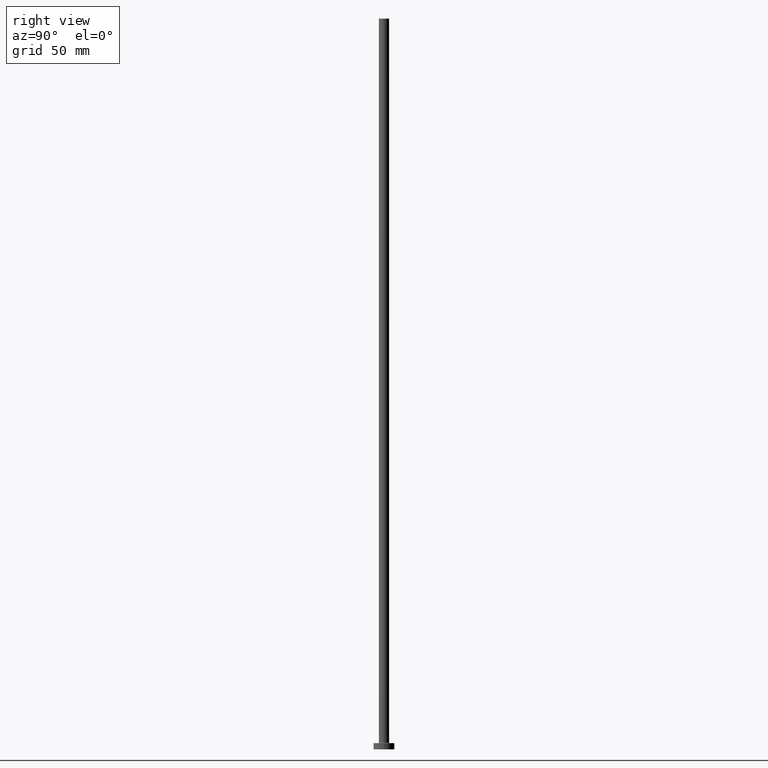
[diagram: clean part render]
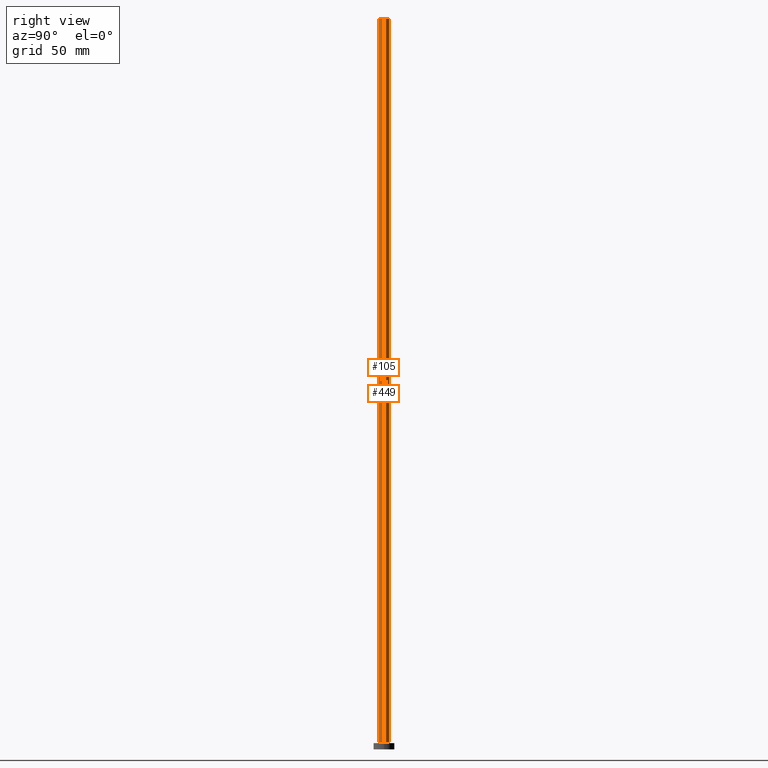
[diagram: same view with one multi-face feature highlighted, each face labeled with its STEP entity id]
A machine part, right view. The highlighted faces form ONE feature: a constant-radius fillet chain: 2 tangent blend faces with common blend radius 2.5 mm. The faces share edges in the B-rep.
Their STEP definitions:
[1] entity #105 (Cylinder):
#14 = CARTESIAN_POINT ( 'NONE',  ( -2.500000000000000000, 0.000000000000000000, 350.0000000000000000 ) ) ;
#16 = VERTEX_POINT ( 'NONE', #28 ) ;
#20 = VECTOR ( 'NONE', #115, 1000.000000000000000 ) ;
#28 = CARTESIAN_POINT ( 'NONE',  ( -2.500000000000000000, 0.000000000000000000, 350.0000000000000000 ) ) ;
#35 = EDGE_CURVE ( 'NONE', #16, #59, #249, .T. ) ;
#37 = DIRECTION ( 'NONE',  ( -0.000000000000000000, -0.000000000000000000, -1.000000000000000000 ) ) ;
#42 = DIRECTION ( 'NONE',  ( 0.000000000000000000, 0.000000000000000000, 1.000000000000000000 ) ) ;
#50 = DIRECTION ( 'NONE',  ( 1.000000000000000000, 0.000000000000000000, 0.000000000000000000 ) ) ;
#59 = VERTEX_POINT ( 'NONE', #427 ) ;
#63 = CARTESIAN_POINT ( 'NONE',  ( 2.500000000000000000, 3.061616997868383141E-16, 350.0000000000000000 ) ) ;
#69 = CARTESIAN_POINT ( 'NONE',  ( 0.000000000000000000, 0.000000000000000000, 350.0000000000000000 ) ) ;
#70 = VECTOR ( 'NONE', #418, 1000.000000000000000 ) ;
#71 = CYLINDRICAL_SURFACE ( 'NONE', #156, 2.500000000000000000 ) ;
#91 = ORIENTED_EDGE ( 'NONE', *, *, #35, .F. ) ;
#105 = ADVANCED_FACE ( 'NONE', ( #314 ), #71, .T. ) ;
#115 = DIRECTION ( 'NONE',  ( -0.000000000000000000, -0.000000000000000000, -1.000000000000000000 ) ) ;
#127 = AXIS2_PLACEMENT_3D ( 'NONE', #69, #42, #215 ) ;
#147 = VERTEX_POINT ( 'NONE', #218 ) ;
#156 = AXIS2_PLACEMENT_3D ( 'NONE', #428, #37, #313 ) ;
#172 = LINE ( 'NONE', #63, #70 ) ;
#210 = EDGE_CURVE ( 'NONE', #16, #233, #366, .T. ) ;
#215 = DIRECTION ( 'NONE',  ( 1.000000000000000000, 0.000000000000000000, 0.000000000000000000 ) ) ;
#218 = CARTESIAN_POINT ( 'NONE',  ( 2.500000000000000000, 3.061616997868383141E-16, 3.300000000000025135 ) ) ;
#233 = VERTEX_POINT ( 'NONE', #295 ) ;
#249 = CIRCLE ( 'NONE', #127, 2.500000000000000000 ) ;
#259 = EDGE_LOOP ( 'NONE', ( #263, #91, #407, #329 ) ) ;
#263 = ORIENTED_EDGE ( 'NONE', *, *, #374, .F. ) ;
#272 = EDGE_CURVE ( 'NONE', #233, #147, #282, .T. ) ;
#282 = CIRCLE ( 'NONE', #291, 2.500000000000000000 ) ;
#291 = AXIS2_PLACEMENT_3D ( 'NONE', #433, #396, #50 ) ;
#295 = CARTESIAN_POINT ( 'NONE',  ( -2.500000000000000000, 0.000000000000000000, 3.300000000000025135 ) ) ;
#313 = DIRECTION ( 'NONE',  ( -1.000000000000000000, 0.000000000000000000, 0.000000000000000000 ) ) ;
#314 = FACE_OUTER_BOUND ( 'NONE', #259, .T. ) ;
#329 = ORIENTED_EDGE ( 'NONE', *, *, #272, .T. ) ;
#366 = LINE ( 'NONE', #14, #20 ) ;
#374 = EDGE_CURVE ( 'NONE', #59, #147, #172, .T. ) ;
#396 = DIRECTION ( 'NONE',  ( 0.000000000000000000, 0.000000000000000000, 1.000000000000000000 ) ) ;
#407 = ORIENTED_EDGE ( 'NONE', *, *, #210, .T. ) ;
#418 = DIRECTION ( 'NONE',  ( -0.000000000000000000, -0.000000000000000000, -1.000000000000000000 ) ) ;
#427 = CARTESIAN_POINT ( 'NONE',  ( 2.500000000000000000, 3.061616997868383141E-16, 350.0000000000000000 ) ) ;
#428 = CARTESIAN_POINT ( 'NONE',  ( 0.000000000000000000, 0.000000000000000000, 350.0000000000000000 ) ) ;
#433 = CARTESIAN_POINT ( 'NONE',  ( 0.000000000000000000, 0.000000000000000000, 3.300000000000025135 ) ) ;
[2] entity #449 (Cylinder):
#7 = CARTESIAN_POINT ( 'NONE',  ( 0.000000000000000000, 0.000000000000000000, 3.300000000000025135 ) ) ;
#14 = CARTESIAN_POINT ( 'NONE',  ( -2.500000000000000000, 0.000000000000000000, 350.0000000000000000 ) ) ;
#16 = VERTEX_POINT ( 'NONE', #28 ) ;
#20 = VECTOR ( 'NONE', #115, 1000.000000000000000 ) ;
#28 = CARTESIAN_POINT ( 'NONE',  ( -2.500000000000000000, 0.000000000000000000, 350.0000000000000000 ) ) ;
#39 = AXIS2_PLACEMENT_3D ( 'NONE', #217, #142, #106 ) ;
#40 = DIRECTION ( 'NONE',  ( 0.000000000000000000, 0.000000000000000000, 1.000000000000000000 ) ) ;
#59 = VERTEX_POINT ( 'NONE', #427 ) ;
#63 = CARTESIAN_POINT ( 'NONE',  ( 2.500000000000000000, 3.061616997868383141E-16, 350.0000000000000000 ) ) ;
#70 = VECTOR ( 'NONE', #418, 1000.000000000000000 ) ;
#94 = AXIS2_PLACEMENT_3D ( 'NONE', #7, #40, #137 ) ;
#102 = EDGE_CURVE ( 'NONE', #147, #233, #342, .T. ) ;
#106 = DIRECTION ( 'NONE',  ( 1.000000000000000000, 0.000000000000000000, 0.000000000000000000 ) ) ;
#115 = DIRECTION ( 'NONE',  ( -0.000000000000000000, -0.000000000000000000, -1.000000000000000000 ) ) ;
#137 = DIRECTION ( 'NONE',  ( 1.000000000000000000, 0.000000000000000000, 0.000000000000000000 ) ) ;
#142 = DIRECTION ( 'NONE',  ( 0.000000000000000000, 0.000000000000000000, 1.000000000000000000 ) ) ;
#147 = VERTEX_POINT ( 'NONE', #218 ) ;
#158 = DIRECTION ( 'NONE',  ( -0.000000000000000000, -0.000000000000000000, -1.000000000000000000 ) ) ;
#161 = EDGE_LOOP ( 'NONE', ( #320, #455, #192, #257 ) ) ;
#172 = LINE ( 'NONE', #63, #70 ) ;
#192 = ORIENTED_EDGE ( 'NONE', *, *, #102, .T. ) ;
#204 = CIRCLE ( 'NONE', #39, 2.500000000000000000 ) ;
#209 = AXIS2_PLACEMENT_3D ( 'NONE', #267, #158, #298 ) ;
#210 = EDGE_CURVE ( 'NONE', #16, #233, #366, .T. ) ;
#217 = CARTESIAN_POINT ( 'NONE',  ( 0.000000000000000000, 0.000000000000000000, 350.0000000000000000 ) ) ;
#218 = CARTESIAN_POINT ( 'NONE',  ( 2.500000000000000000, 3.061616997868383141E-16, 3.300000000000025135 ) ) ;
#233 = VERTEX_POINT ( 'NONE', #295 ) ;
#257 = ORIENTED_EDGE ( 'NONE', *, *, #210, .F. ) ;
#267 = CARTESIAN_POINT ( 'NONE',  ( 0.000000000000000000, 0.000000000000000000, 350.0000000000000000 ) ) ;
#295 = CARTESIAN_POINT ( 'NONE',  ( -2.500000000000000000, 0.000000000000000000, 3.300000000000025135 ) ) ;
#298 = DIRECTION ( 'NONE',  ( -1.000000000000000000, 0.000000000000000000, 0.000000000000000000 ) ) ;
#320 = ORIENTED_EDGE ( 'NONE', *, *, #432, .F. ) ;
#342 = CIRCLE ( 'NONE', #94, 2.500000000000000000 ) ;
#366 = LINE ( 'NONE', #14, #20 ) ;
#371 = FACE_OUTER_BOUND ( 'NONE', #161, .T. ) ;
#374 = EDGE_CURVE ( 'NONE', #59, #147, #172, .T. ) ;
#418 = DIRECTION ( 'NONE',  ( -0.000000000000000000, -0.000000000000000000, -1.000000000000000000 ) ) ;
#427 = CARTESIAN_POINT ( 'NONE',  ( 2.500000000000000000, 3.061616997868383141E-16, 350.0000000000000000 ) ) ;
#432 = EDGE_CURVE ( 'NONE', #59, #16, #204, .T. ) ;
#449 = ADVANCED_FACE ( 'NONE', ( #371 ), #453, .T. ) ;
#453 = CYLINDRICAL_SURFACE ( 'NONE', #209, 2.500000000000000000 ) ;
#455 = ORIENTED_EDGE ( 'NONE', *, *, #374, .T. ) ;